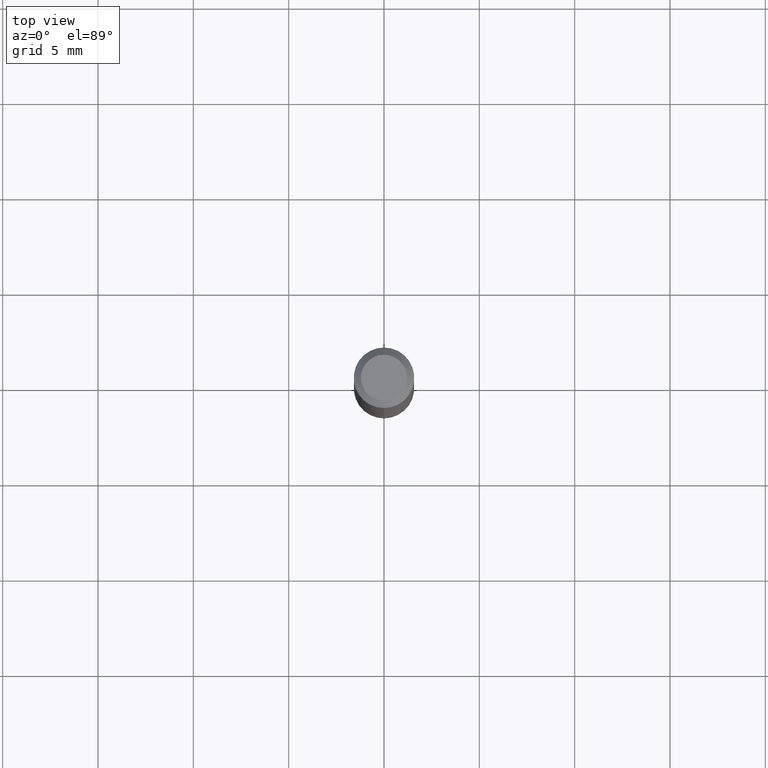
[diagram: clean part render]
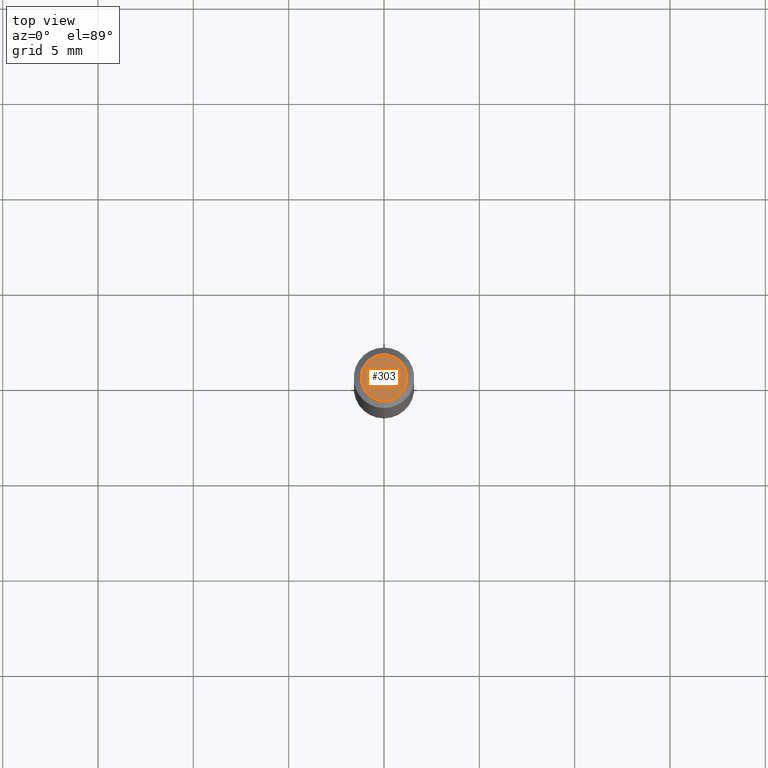
[diagram: same view with one face highlighted and labeled with its STEP entity id]
A machine part, top view. The second image highlights one B-rep face of the part: STEP entity #303.
In plain terms, the highlighted planar face has unit normal (0, -0, -1).
Its self-contained STEP definition (entity closure, byte-faithful):
#28 = DIRECTION ( 'NONE',  ( 2.445468599825168733E-29, -3.491481634362364311E-15, -1.000000000000000000 ) ) ;
#37 = CARTESIAN_POINT ( 'NONE',  ( 2.166759901879762675E-46, -3.093559411896288805E-32, -8.860305554668207261E-18 ) ) ;
#40 = CARTESIAN_POINT ( 'NONE',  ( 2.166759901879762675E-46, -3.093559411896288805E-32, -8.860305554668207261E-18 ) ) ;
#66 = PLANE ( 'NONE',  #102 ) ;
#84 = VERTEX_POINT ( 'NONE', #141 ) ;
#94 = ORIENTED_EDGE ( 'NONE', *, *, #95, .T. ) ;
#95 = EDGE_CURVE ( 'NONE', #84, #305, #391, .T. ) ;
#102 = AXIS2_PLACEMENT_3D ( 'NONE', #150, #28, #461 ) ;
#141 = CARTESIAN_POINT ( 'NONE',  ( -3.773273898774340269E-16, -0.04749999999999999362, 1.569850720775441176E-16 ) ) ;
#150 = CARTESIAN_POINT ( 'NONE',  ( 3.316907271900976096E-16, 0.04749999999999999362, -1.702755304095464023E-16 ) ) ;
#164 = EDGE_LOOP ( 'NONE', ( #299, #94 ) ) ;
#172 = CIRCLE ( 'NONE', #359, 0.04749999999999999362 ) ;
#187 = DIRECTION ( 'NONE',  ( -6.982962677686266711E-15, -1.000000000000000000, 3.491481634362365100E-15 ) ) ;
#196 = DIRECTION ( 'NONE',  ( -6.982962677686266711E-15, -1.000000000000000000, 3.491481634362365100E-15 ) ) ;
#232 = AXIS2_PLACEMENT_3D ( 'NONE', #37, #235, #196 ) ;
#235 = DIRECTION ( 'NONE',  ( -2.445468599825169014E-29, 3.491481634362364311E-15, 1.000000000000000000 ) ) ;
#265 = FACE_OUTER_BOUND ( 'NONE', #164, .T. ) ;
#299 = ORIENTED_EDGE ( 'NONE', *, *, #373, .T. ) ;
#303 = ADVANCED_FACE ( 'NONE', ( #265 ), #66, .F. ) ;
#305 = VERTEX_POINT ( 'NONE', #504 ) ;
#359 = AXIS2_PLACEMENT_3D ( 'NONE', #40, #433, #187 ) ;
#373 = EDGE_CURVE ( 'NONE', #305, #84, #172, .T. ) ;
#391 = CIRCLE ( 'NONE', #232, 0.04749999999999999362 ) ;
#433 = DIRECTION ( 'NONE',  ( -2.445468599825169014E-29, 3.491481634362364311E-15, 1.000000000000000000 ) ) ;
#461 = DIRECTION ( 'NONE',  ( 6.982962677686265922E-15, 1.000000000000000000, -3.491481634362364311E-15 ) ) ;
#504 = CARTESIAN_POINT ( 'NONE',  ( 3.840629472727447874E-16, 0.04749999999999999362, -1.747056831868805136E-16 ) ) ;